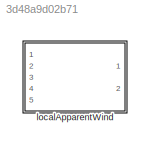
MODEL slx_3d48a9d02b71
KIND library
CONFIG AbsTol = auto
CONFIG EnableMultiTasking = off
CONFIG FixedStep = auto
CONFIG MaxStep = auto
CONFIG MinStep = auto
CONFIG RelTol = 1e-3
CONFIG SampleTimeConstraint = Unconstrained
CONFIG Solver = VariableStepAuto
CONFIG SolverName = VariableStepAuto
CONFIG StartTime = 0.0
CONFIG StopTime = 10.0
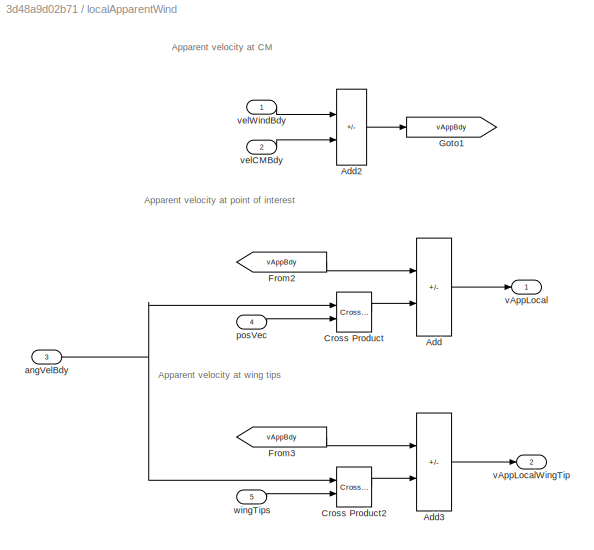
BLOCK [SubSystem] localApparentWind
  Ports = [5, 2]
  RequestExecContextInheritance = off
BLOCK [Sum] localApparentWind/Add
  IconShape = rectangular
  Inputs = +-
  Ports = [2, 1]
BLOCK [Sum] localApparentWind/Add2
  IconShape = rectangular
  Inputs = +-
  Ports = [2, 1]
BLOCK [Sum] localApparentWind/Add3
  IconShape = rectangular
  Inputs = +-
  Ports = [2, 1]
BLOCK [Reference] localApparentWind/Cross Product  REF=vrlib/Utilities/Cross Product
  Ports = [2, 1]
  SourceBlock = vrlib/Utilities/Cross Product
  SourceProductBaseCode = SL
  SourceType = Cross Product
BLOCK [Reference] localApparentWind/Cross Product2  REF=vrlib/Utilities/Cross Product
  Ports = [2, 1]
  SourceBlock = vrlib/Utilities/Cross Product
  SourceProductBaseCode = SL
  SourceType = Cross Product
BLOCK [From] localApparentWind/From2
  GotoTag = vAppBdy
BLOCK [From] localApparentWind/From3
  GotoTag = vAppBdy
BLOCK [Goto] localApparentWind/Goto1
  GotoTag = vAppBdy
BLOCK [Inport] localApparentWind/angVelBdy
  Port = 3
BLOCK [Inport] localApparentWind/posVec
  Port = 4
BLOCK [Outport] localApparentWind/vAppLocal
  VectorParamsAs1DForOutWhenUnconnected = off
BLOCK [Outport] localApparentWind/vAppLocalWingTip
  Port = 2
  VectorParamsAs1DForOutWhenUnconnected = off
BLOCK [Inport] localApparentWind/velCMBdy
  Port = 2
BLOCK [Inport] localApparentWind/velWindBdy
BLOCK [Inport] localApparentWind/wingTips
  Port = 5
ANNOTATION localApparentWind: Apparent velocity at CM
ANNOTATION localApparentWind: Apparent velocity at point of interest
ANNOTATION localApparentWind: Apparent velocity at wing tips
LINE localApparentWind/Add2:1 -> localApparentWind/Goto1:1
LINE localApparentWind/Add3:1 -> localApparentWind/vAppLocalWingTip:1
LINE localApparentWind/Add:1 -> localApparentWind/vAppLocal:1
LINE localApparentWind/Cross Product2:1 -> localApparentWind/Add3:2
LINE localApparentWind/Cross Product:1 -> localApparentWind/Add:2
LINE localApparentWind/From2:1 -> localApparentWind/Add:1
LINE localApparentWind/From3:1 -> localApparentWind/Add3:1
NET localApparentWind/angVelBdy:1 -> localApparentWind/Cross Product2:1, localApparentWind/Cross Product:1
LINE localApparentWind/posVec:1 -> localApparentWind/Cross Product:2
LINE localApparentWind/velCMBdy:1 -> localApparentWind/Add2:2
LINE localApparentWind/velWindBdy:1 -> localApparentWind/Add2:1
LINE localApparentWind/wingTips:1 -> localApparentWind/Cross Product2:2
note: NET lines group one-source signal fan-out (src -> all destinations, sorted); 1:1 wires keep LINE
